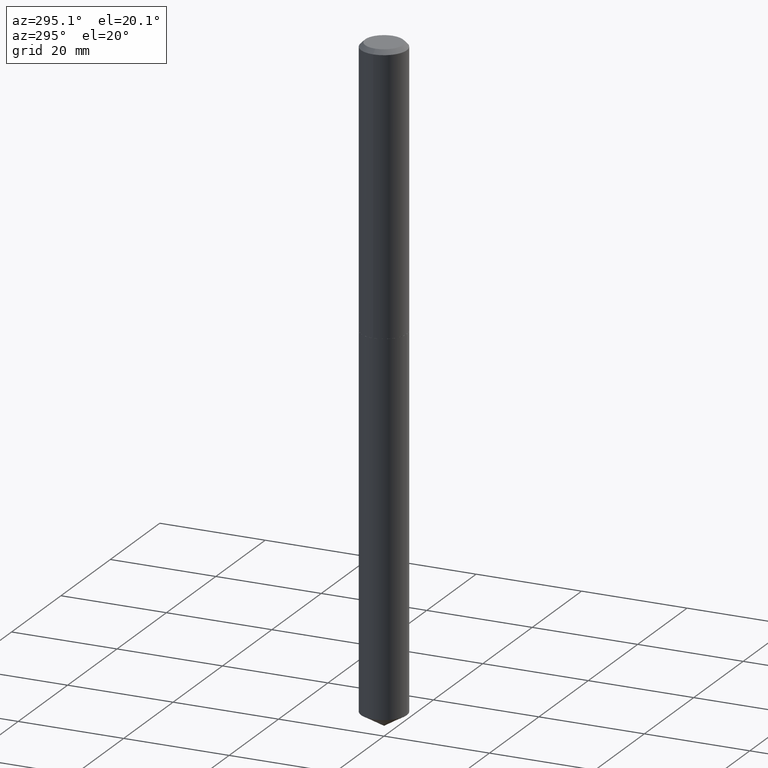
[diagram: clean part render]
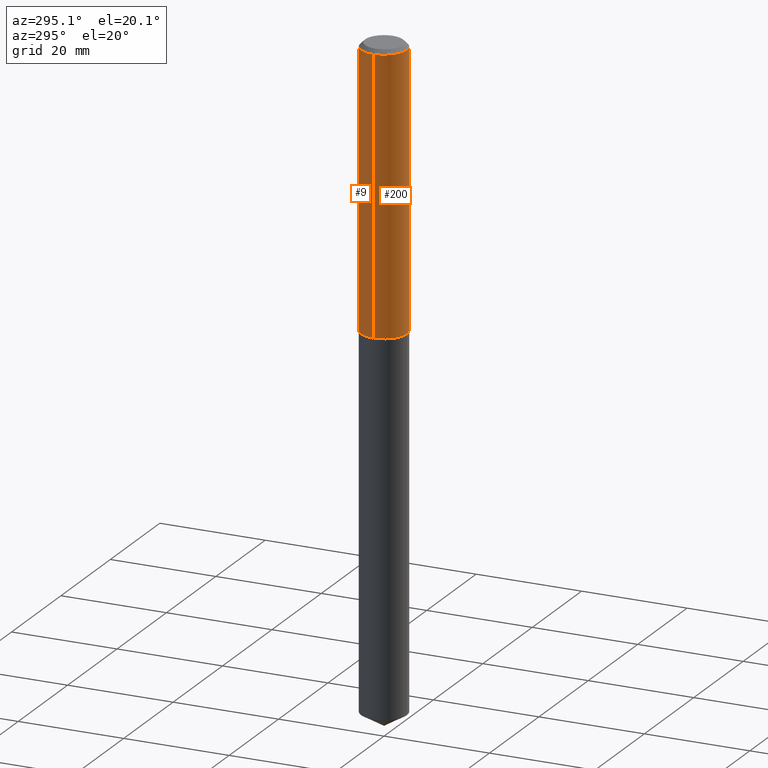
[diagram: same view with one multi-face feature highlighted, each face labeled with its STEP entity id]
A machine part, auxiliary view. The highlighted faces form ONE feature: a constant-radius fillet chain: 2 tangent blend faces with common blend radius 4.3498 mm. The faces share edges in the B-rep.
Their STEP definitions:
[1] entity #9 (Cylinder):
#9 = ADVANCED_FACE ( 'NONE', ( #172 ), #342, .T. ) ;
#14 = CIRCLE ( 'NONE', #73, 0.1712500000000002354 ) ;
#20 = VERTEX_POINT ( 'NONE', #335 ) ;
#30 = LINE ( 'NONE', #173, #64 ) ;
#34 = EDGE_CURVE ( 'NONE', #20, #307, #311, .T. ) ;
#54 = CARTESIAN_POINT ( 'NONE',  ( 0.000000000000000000, 0.000000000000000000, 0.000000000000000000 ) ) ;
#64 = VECTOR ( 'NONE', #291, 39.37007874015748143 ) ;
#73 = AXIS2_PLACEMENT_3D ( 'NONE', #315, #89, #261 ) ;
#80 = DIRECTION ( 'NONE',  ( -2.445468806185136597E-29, 3.491481338843145583E-15, 1.000000000000000000 ) ) ;
#81 = ORIENTED_EDGE ( 'NONE', *, *, #175, .T. ) ;
#88 = EDGE_CURVE ( 'NONE', #159, #20, #205, .T. ) ;
#89 = DIRECTION ( 'NONE',  ( -2.445468806185136597E-29, 3.491481338843145583E-15, 1.000000000000000000 ) ) ;
#109 = ORIENTED_EDGE ( 'NONE', *, *, #163, .T. ) ;
#116 = AXIS2_PLACEMENT_3D ( 'NONE', #54, #80, #169 ) ;
#149 = ORIENTED_EDGE ( 'NONE', *, *, #34, .F. ) ;
#159 = VERTEX_POINT ( 'NONE', #385 ) ;
#163 = EDGE_CURVE ( 'NONE', #159, #179, #14, .T. ) ;
#169 = DIRECTION ( 'NONE',  ( 1.000000000000000000, -6.982962677686267499E-15, 4.876176775795935793E-29 ) ) ;
#172 = FACE_OUTER_BOUND ( 'NONE', #217, .T. ) ;
#173 = CARTESIAN_POINT ( 'NONE',  ( -0.1712500000000001243, 1.216804434989172452E-15, -8.423676342061532268E-30 ) ) ;
#175 = EDGE_CURVE ( 'NONE', #179, #307, #30, .T. ) ;
#179 = VERTEX_POINT ( 'NONE', #259 ) ;
#194 = CARTESIAN_POINT ( 'NONE',  ( 7.642090019328598283E-31, -1.091087918388489651E-16, -0.03125000000000019429 ) ) ;
#205 = LINE ( 'NONE', #240, #248 ) ;
#217 = EDGE_LOOP ( 'NONE', ( #109, #81, #149, #329 ) ) ;
#240 = CARTESIAN_POINT ( 'NONE',  ( 0.1712500000000001243, -1.195832358553774121E-15, 8.350452728550546071E-30 ) ) ;
#248 = VECTOR ( 'NONE', #297, 39.37007874015748143 ) ;
#258 = DIRECTION ( 'NONE',  ( -2.445468806185136597E-29, 3.491481338843145583E-15, 1.000000000000000000 ) ) ;
#259 = CARTESIAN_POINT ( 'NONE',  ( -0.1712500000000002354, -6.022083824834319025E-15, -2.073299999999999699 ) ) ;
#261 = DIRECTION ( 'NONE',  ( 1.000000000000000000, -6.982962677686265133E-15, 0.000000000000000000 ) ) ;
#285 = DIRECTION ( 'NONE',  ( 1.000000000000000000, -6.982962677686266711E-15, 0.000000000000000000 ) ) ;
#291 = DIRECTION ( 'NONE',  ( -2.445468806185136877E-29, 3.491481338843145188E-15, 1.000000000000000000 ) ) ;
#297 = DIRECTION ( 'NONE',  ( -2.445468806185136877E-29, 3.491481338843145188E-15, 1.000000000000000000 ) ) ;
#307 = VERTEX_POINT ( 'NONE', #363 ) ;
#311 = CIRCLE ( 'NONE', #380, 0.1712500000000000133 ) ;
#315 = CARTESIAN_POINT ( 'NONE',  ( 5.070190475863642689E-29, -7.238888259823493055E-15, -2.073299999999999699 ) ) ;
#329 = ORIENTED_EDGE ( 'NONE', *, *, #88, .F. ) ;
#335 = CARTESIAN_POINT ( 'NONE',  ( 0.1712500000000000133, -1.304941150392622433E-15, -0.03125000000000019429 ) ) ;
#342 = CYLINDRICAL_SURFACE ( 'NONE', #116, 0.1712500000000001243 ) ;
#363 = CARTESIAN_POINT ( 'NONE',  ( -0.1712500000000000133, -2.457194090841997837E-15, -0.03125000000000019429 ) ) ;
#380 = AXIS2_PLACEMENT_3D ( 'NONE', #194, #258, #285 ) ;
#385 = CARTESIAN_POINT ( 'NONE',  ( 0.1712500000000002354, -8.434720618377267964E-15, -2.073299999999999699 ) ) ;
[2] entity #200 (Cylinder):
#7 = CIRCLE ( 'NONE', #382, 0.1712500000000000133 ) ;
#20 = VERTEX_POINT ( 'NONE', #335 ) ;
#30 = LINE ( 'NONE', #173, #64 ) ;
#45 = DIRECTION ( 'NONE',  ( 1.000000000000000000, -6.982962677686266711E-15, 0.000000000000000000 ) ) ;
#61 = EDGE_CURVE ( 'NONE', #307, #20, #7, .T. ) ;
#64 = VECTOR ( 'NONE', #291, 39.37007874015748143 ) ;
#75 = CARTESIAN_POINT ( 'NONE',  ( 7.642090019328598283E-31, -1.091087918388489651E-16, -0.03125000000000019429 ) ) ;
#77 = EDGE_LOOP ( 'NONE', ( #167, #364, #374, #212 ) ) ;
#86 = CYLINDRICAL_SURFACE ( 'NONE', #111, 0.1712500000000001243 ) ;
#88 = EDGE_CURVE ( 'NONE', #159, #20, #205, .T. ) ;
#110 = EDGE_CURVE ( 'NONE', #179, #159, #339, .T. ) ;
#111 = AXIS2_PLACEMENT_3D ( 'NONE', #233, #347, #146 ) ;
#115 = DIRECTION ( 'NONE',  ( 1.000000000000000000, -6.982962677686265133E-15, 0.000000000000000000 ) ) ;
#145 = CARTESIAN_POINT ( 'NONE',  ( 5.070190475863642689E-29, -7.238888259823493055E-15, -2.073299999999999699 ) ) ;
#146 = DIRECTION ( 'NONE',  ( 1.000000000000000000, -6.982962677686267499E-15, 4.876176775795935793E-29 ) ) ;
#150 = FACE_OUTER_BOUND ( 'NONE', #77, .T. ) ;
#159 = VERTEX_POINT ( 'NONE', #385 ) ;
#167 = ORIENTED_EDGE ( 'NONE', *, *, #175, .F. ) ;
#173 = CARTESIAN_POINT ( 'NONE',  ( -0.1712500000000001243, 1.216804434989172452E-15, -8.423676342061532268E-30 ) ) ;
#175 = EDGE_CURVE ( 'NONE', #179, #307, #30, .T. ) ;
#177 = DIRECTION ( 'NONE',  ( -2.445468806185136597E-29, 3.491481338843145583E-15, 1.000000000000000000 ) ) ;
#179 = VERTEX_POINT ( 'NONE', #259 ) ;
#200 = ADVANCED_FACE ( 'NONE', ( #150 ), #86, .T. ) ;
#205 = LINE ( 'NONE', #240, #248 ) ;
#212 = ORIENTED_EDGE ( 'NONE', *, *, #61, .F. ) ;
#233 = CARTESIAN_POINT ( 'NONE',  ( 0.000000000000000000, 0.000000000000000000, 0.000000000000000000 ) ) ;
#240 = CARTESIAN_POINT ( 'NONE',  ( 0.1712500000000001243, -1.195832358553774121E-15, 8.350452728550546071E-30 ) ) ;
#248 = VECTOR ( 'NONE', #297, 39.37007874015748143 ) ;
#259 = CARTESIAN_POINT ( 'NONE',  ( -0.1712500000000002354, -6.022083824834319025E-15, -2.073299999999999699 ) ) ;
#287 = DIRECTION ( 'NONE',  ( -2.445468806185136597E-29, 3.491481338843145583E-15, 1.000000000000000000 ) ) ;
#291 = DIRECTION ( 'NONE',  ( -2.445468806185136877E-29, 3.491481338843145188E-15, 1.000000000000000000 ) ) ;
#297 = DIRECTION ( 'NONE',  ( -2.445468806185136877E-29, 3.491481338843145188E-15, 1.000000000000000000 ) ) ;
#307 = VERTEX_POINT ( 'NONE', #363 ) ;
#313 = AXIS2_PLACEMENT_3D ( 'NONE', #145, #177, #115 ) ;
#335 = CARTESIAN_POINT ( 'NONE',  ( 0.1712500000000000133, -1.304941150392622433E-15, -0.03125000000000019429 ) ) ;
#339 = CIRCLE ( 'NONE', #313, 0.1712500000000002354 ) ;
#347 = DIRECTION ( 'NONE',  ( -2.445468806185136597E-29, 3.491481338843145583E-15, 1.000000000000000000 ) ) ;
#363 = CARTESIAN_POINT ( 'NONE',  ( -0.1712500000000000133, -2.457194090841997837E-15, -0.03125000000000019429 ) ) ;
#364 = ORIENTED_EDGE ( 'NONE', *, *, #110, .T. ) ;
#374 = ORIENTED_EDGE ( 'NONE', *, *, #88, .T. ) ;
#382 = AXIS2_PLACEMENT_3D ( 'NONE', #75, #287, #45 ) ;
#385 = CARTESIAN_POINT ( 'NONE',  ( 0.1712500000000002354, -8.434720618377267964E-15, -2.073299999999999699 ) ) ;